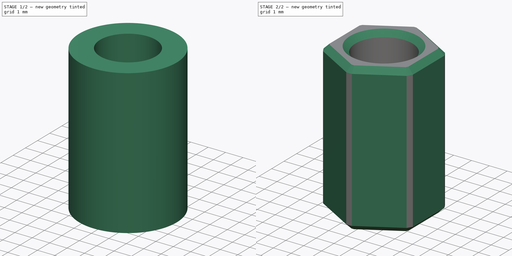
[diagram: build sequence overview — one tinted view per stage of 2, left to right]
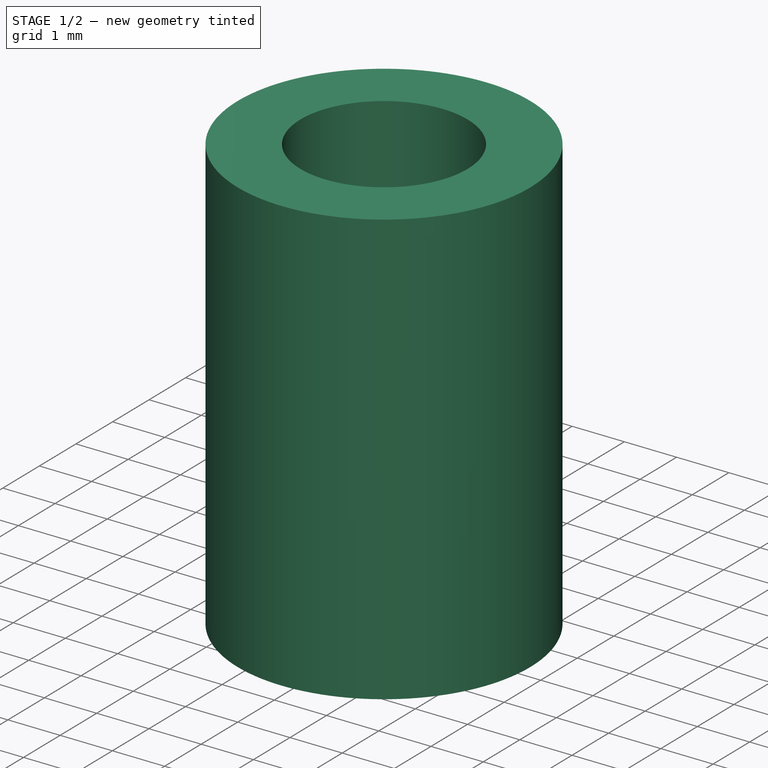
[diagram: stage 1 of 2 — iso view after this stage's code; geometry added in this stage tinted green]
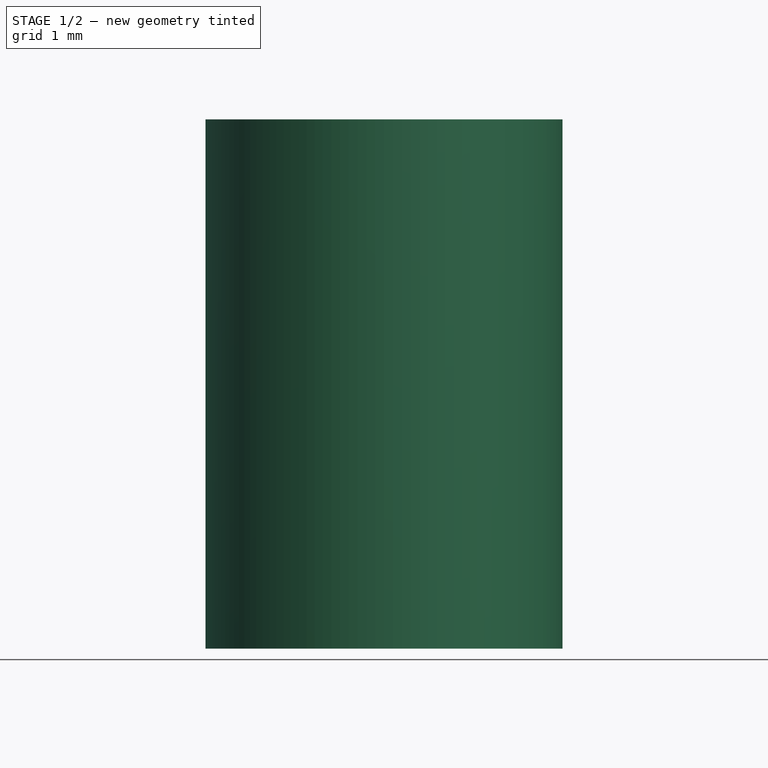
[diagram: stage 1 of 2 — front view after this stage's code; geometry added in this stage tinted green]
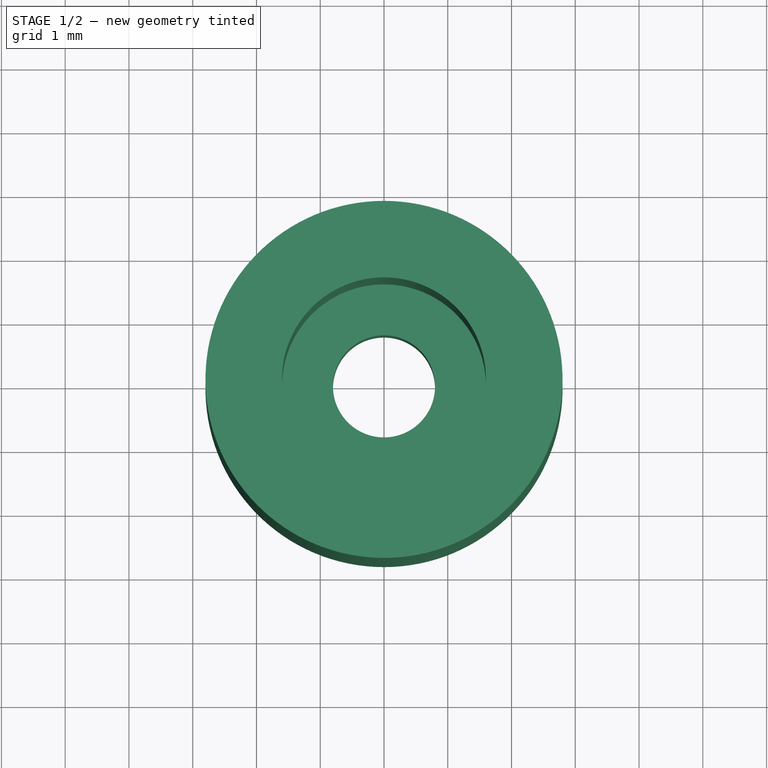
[diagram: stage 1 of 2 — top view after this stage's code; geometry added in this stage tinted green]
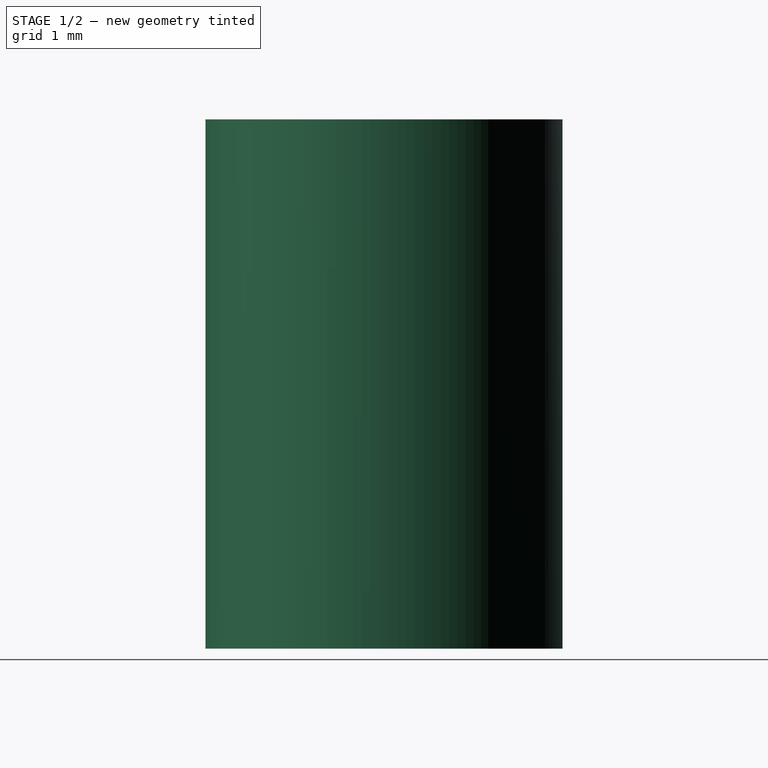
[diagram: stage 1 of 2 — right view after this stage's code; geometry added in this stage tinted green]
FCSTD DOCUMENT  (FreeCAD 0.21R33668 +26 (Git))
Label: PLASTIC-SPACER
License: All rights reserved
LicenseURL: http://en.wikipedia.org/wiki/All_rights_reserved
objects: TechDraw::DrawViewDimension×5, Sketcher::SketchObject×3, TechDraw::DrawViewPart×3, TechDraw::DrawHatch×3, PartDesign::Body×2, PartDesign::Revolution×1, TechDraw::DrawSVGTemplate×1, PartDesign::FeatureBase×1, PartDesign::Pocket×1, PartDesign::Chamfer×1, TechDraw::DrawComplexSection×1, TechDraw::DrawViewBalloon×1, TechDraw::DrawPage×1
note: 17 computed .brp shape members not serialized (recipe doc carries the construction recipe); baked Part::Feature solids carry a one-line shape summary decoded from their .brp

FEATURE [Sketcher::SketchObject] Sketch
  FullyConstrained = true
  MapMode = 5
  Placement = pos=(0,0,0) rot=(0.57735,0.57735,0.57735;2.0944rad)
  Support = -> [YZ_Plane]
  sketch-geometry (6):
    g0: LineSegment StartX=2.8 StartY=8.3 StartZ=0 EndX=2.8 EndY=0 EndZ=0
    g1: LineSegment StartX=2.8 StartY=0 StartZ=0 EndX=0.8 EndY=0 EndZ=0
    g2: LineSegment StartX=0.8 StartY=0 StartZ=0 EndX=0.8 EndY=2 EndZ=0
    g3: LineSegment StartX=0.8 StartY=2 StartZ=0 EndX=1.6 EndY=2 EndZ=0
    g4: LineSegment StartX=1.6 StartY=2 StartZ=0 EndX=1.6 EndY=8.3 EndZ=0
    g5: LineSegment StartX=1.6 StartY=8.3 StartZ=0 EndX=2.8 EndY=8.3 EndZ=0
  constraints (18):
    c: Vertical(g0)
    c: Coincident(g0,g1)
    c: Horizontal(g1)
    c: Coincident(g1,g2)
    c: Vertical(g2)
    c: Coincident(g2,g3)
    c: Horizontal(g3)
    c: Coincident(g3,g4)
    c: Vertical(g4)
    c: Coincident(g4,g5)
    c: Horizontal(g5)
    c: DistanceX(g-1,g1) = 0.8
    c: DistanceX(g1,g1) = 2
    c: DistanceX(g-1,g3) = 1.6
    c: Coincident(g0,g5)
    c: DistanceY(g-1,g4) = 8.3
    c: PointOnObject(g1,g-1)
    c: DistanceY(g2,g2) = 2
FEATURE [PartDesign::Revolution] Revolution
  Angle = 360
  Axis = (-2e-16,3e-16,1)
  Base = (0,0,0)
  Placement = pos=(0,0,0) rot=(0.57735,0.57735,0.57735;2.0944rad)
  Profile = -> Sketch
  ReferenceAxis = -> Sketch [V_Axis]
  Reversed = true
FEATURE [Sketcher::SketchObject] Sketch001
  FullyConstrained = true
  MapMode = 5
  Support = -> [XY_Plane001]
  sketch-geometry (8):
    g0: Circle CenterX=0 CenterY=0 CenterZ=0 NormalX=0 NormalY=0 NormalZ=1 AngleXU=0 Radius=5
    g1: LineSegment StartX=-2.5 StartY=1.44338 StartZ=0 EndX=-2.5 EndY=-1.44338 EndZ=0
    g2: LineSegment StartX=-2.5 StartY=-1.44338 StartZ=0 EndX=0 EndY=-2.88675 EndZ=0
    g3: LineSegment StartX=0 StartY=-2.88675 StartZ=0 EndX=2.5 EndY=-1.44338 EndZ=0
    g4: LineSegment StartX=2.5 StartY=-1.44338 StartZ=0 EndX=2.5 EndY=1.44338 EndZ=0
    g5: LineSegment StartX=2.5 StartY=1.44338 StartZ=0 EndX=0 EndY=2.88675 EndZ=0
    g6: LineSegment StartX=0 StartY=2.88675 StartZ=0 EndX=-2.5 EndY=1.44338 EndZ=0
    g7: Circle CenterX=0 CenterY=0 CenterZ=0 NormalX=0 NormalY=0 NormalZ=1 AngleXU=0 Radius=2.88675
  constraints (18):
    c: Coincident(g0,g-1)
    c: Coincident(g1,g2)
    c: Coincident(g2,g3)
    c: Coincident(g3,g4)
    c: Coincident(g4,g5)
    c: Coincident(g5,g6)
    c: Coincident(g6,g1)
    c: Equal(g1, g2-g6) x5
    c: PointOnObject(g1,g7)
    c: PointOnObject(g2,g7)
    c: PointOnObject(g3,g7)
    c: PointOnObject(g4,g7)
    c: PointOnObject(g5,g7)
    c: PointOnObject(g6,g7)
    c: Coincident(g7,g0)
    c: Vertical(g1)
    c: DistanceX(g1,g4) = 5
    c: Diameter(g0) = 10
FEATURE [TechDraw::DrawSVGTemplate] Template
  EditableTexts = COLOR=Black; CreationDate=2024/02/28; E.G.APPROVED=APPROVED; FC-Scale=10:1; FC-Title=PLASTIC - SPACER; IntechStudioLtd.=Intech Studio Ltd.; MATERIAL=POM; REV=02; STANDARD=+/- 0,1
  Height = 297
  Orientation = 1
  Template = <userpath>/Desktop/A3_LandscapeTD_MODIFIED.svg
  Width = 420
FEATURE [Sketcher::SketchObject] Sketch002
  FullyConstrained = true
  MapMode = 5
  Placement = pos=(0,0,0) rot=(1,0,0;1.5708rad)
  Support = -> [XZ_Plane]
  sketch-geometry (1):
    g0: LineSegment StartX=0 StartY=9 StartZ=0 EndX=0 EndY=-0.5 EndZ=0
  constraints (4):
    c: PointOnObject(g0,g-2)
    c: PointOnObject(g0,g-2)
    c: DistanceY(g0,g0) = 9.5
    c: DistanceY(g0,g-1) = 0.5
FEATURE [PartDesign::Body] Body  label="PLASTIC-SPACER"
  Group = -> [Sketch,Revolution,Sketch002]
  Origin = -> Origin
  Tip = -> Revolution
FEATURE [PartDesign::FeatureBase] Clone
  BaseFeature = -> Body
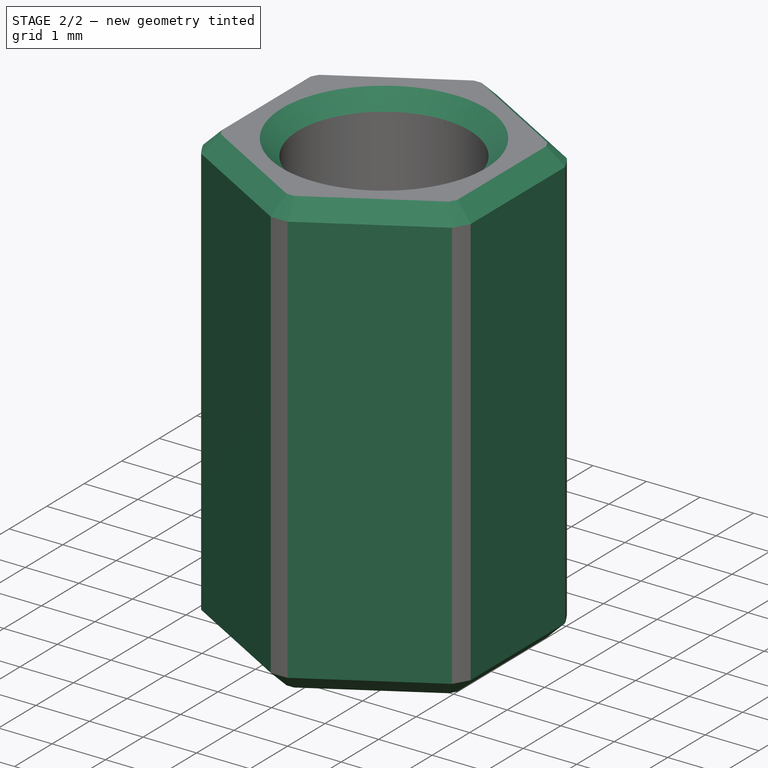
[diagram: stage 2 of 2 — iso view after this stage's code; geometry added in this stage tinted green]
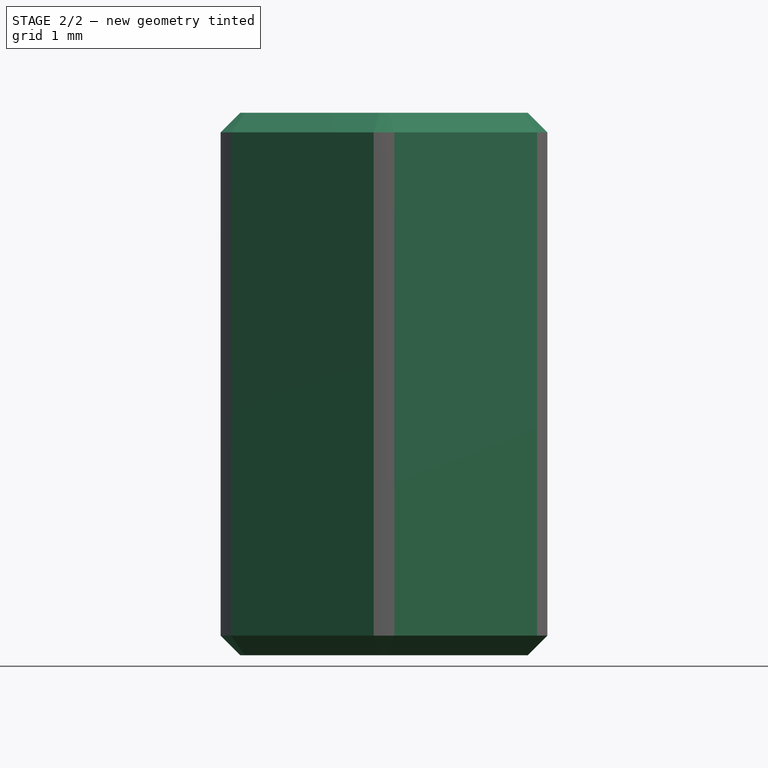
[diagram: stage 2 of 2 — front view after this stage's code; geometry added in this stage tinted green]
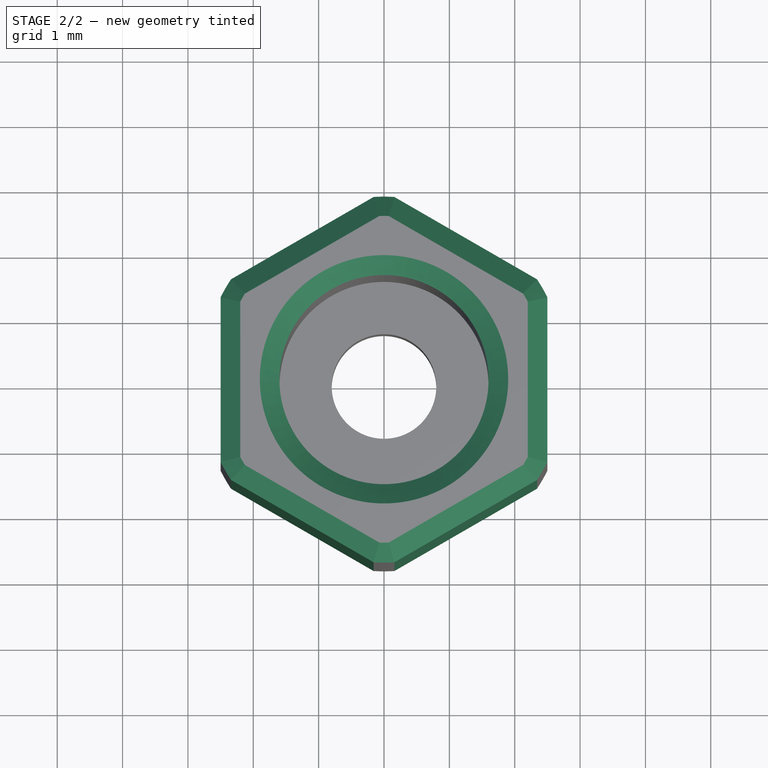
[diagram: stage 2 of 2 — top view after this stage's code; geometry added in this stage tinted green]
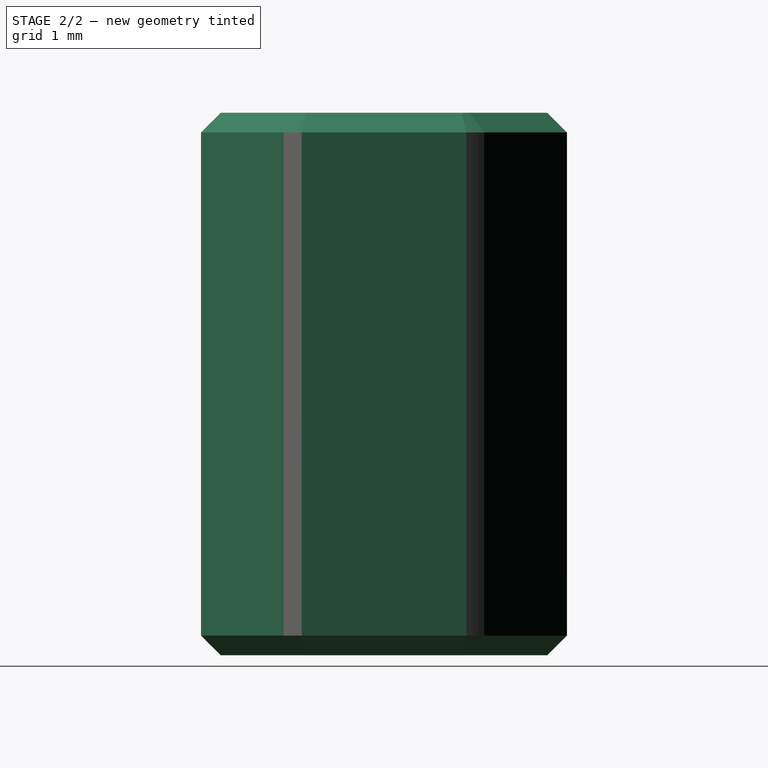
[diagram: stage 2 of 2 — right view after this stage's code; geometry added in this stage tinted green]
FEATURE [PartDesign::Pocket] Pocket
  BaseFeature = -> Clone
  Direction = (0,0,-1)
  Length = 5
  Length2 = 5
  Midplane = true
  Profile = -> Sketch001
  ReferenceAxis = -> Sketch001 [N_Axis]
  Type = 1
FEATURE [PartDesign::Chamfer] Chamfer
  Angle = 45
  Base = -> Pocket [Face5,Face3]
  BaseFeature = -> Pocket
  ChamferType = 0
  FlipDirection = false
  Size = 0.3
  Size2 = 1
  SupportTransform = false
  UseAllEdges = false
FEATURE [PartDesign::Body] Body001  label="PLASTIC-SPACER_Printed"
  Group = -> [Clone,Sketch001,Pocket,Chamfer]
  Origin = -> Origin001
  Tip = -> Chamfer
FEATURE [TechDraw::DrawViewPart] View
  CoarseView = false
  Direction = (0,-1,1e-06)
  Focus = 100
  HardHidden = false
  IsoCount = 0
  IsoHidden = false
  IsoVisible = true
  LockPosition = false
  Perspective = false
  Rotation = 0
  Scale = 10
  ScaleType = 2
  ScrubCount = 0
  SeamHidden = false
  SeamVisible = true
  SmoothHidden = false
  SmoothVisible = true
  Source = -> [Body]
  X = 69.7766
  XDirection = (1,0,0)
  Y = 193.025
FEATURE [TechDraw::DrawComplexSection] ComplexSection  label="Section A - A"
  BaseView = -> View
  Caption = Section A-A
  CoarseView = false
  CutSurfaceDisplay = 2
  CuttingToolWireObject = -> Sketch002
  Direction = (-1,0,-1e-16)
  FileGeomPattern = C:/Program Files/FreeCAD 0.21/data/Mod/TechDraw/PAT/FCPAT.pat
  FileHatchPattern = C:/Program Files/FreeCAD 0.21/data/Mod/TechDraw/Patterns/simple.svg
  Focus = 100
  FuseBeforeCut = false
  HardHidden = false
  HatchOffset = (0,0,0)
  HatchRotation = 0
  HatchScale = 1
  IsoCount = 0
  IsoHidden = false
  IsoVisible = true
  LockPosition = false
  NameGeomPattern = Gyémánt bevonatú
  Perspective = false
  ProjectionStrategy = 0
  Rotation = -90
  Scale = 10
  ScaleType = 2
  ScrubCount = 0
  SeamHidden = false
  SeamVisible = true
  SectionDirection = 4
  SectionNormal = (-1,0,-1e-16)
  SectionOrigin = (0,0,0)
  SectionSymbol = A
  SmoothHidden = false
  SmoothVisible = true
  Source = -> [Body]
  TrimAfterCut = false
  X = 173.766
  XDirection = (1e-16,-1e-06,-1)
  Y = 191.777
FEATURE [TechDraw::DrawViewPart] View001
  CoarseView = false
  Direction = (0,1e-06,1)
  Focus = 100
  HardHidden = false
  IsoCount = 0
  IsoHidden = false
  IsoVisible = true
  LockPosition = false
  Perspective = false
  Rotation = 0
  Scale = 10
  ScaleType = 2
  ScrubCount = 0
  SeamHidden = false
  SeamVisible = true
  SmoothHidden = false
  SmoothVisible = true
  Source = -> [Body]
  X = 71.9109
  XDirection = (1,0,0)
  Y = 72.8822
FEATURE [TechDraw::DrawViewDimension] Dimension
  AngleOverride = false
  Arbitrary = false
  ArbitraryTolerances = false
  EqualTolerance = true
  ExtensionAngle = 0
  FormatSpec = ⌀%.2w
  FormatSpecOverTolerance = %+.2w
  FormatSpecUnderTolerance = %+.2w
  Inverted = false
  LineAngle = 0
  LockPosition = false
  MeasureType = 1
  OverTolerance = 0
  References2D = -> [View001]
  Rotation = 0
  ScaleType = 0
  TheoreticalExact = false
  Type = 5
  UnderTolerance = 0
  X = 52.1911
  Y = 23.7678
FEATURE [TechDraw::DrawViewDimension] Dimension001
  AngleOverride = false
  Arbitrary = false
  ArbitraryTolerances = false
  EqualTolerance = true
  ExtensionAngle = 0
  FormatSpec = %.2w
  FormatSpecOverTolerance = %+.2w
  FormatSpecUnderTolerance = %+.2w
  Inverted = false
  LineAngle = 0
  LockPosition = false
  MeasureType = 1
  OverTolerance = 0
  References2D = -> [View]
  Rotation = 0
  ScaleType = 0
  TheoreticalExact = false
  Type = 2
  UnderTolerance = 0
  X = -40.7619
  Y = -0.392856
FEATURE [TechDraw::DrawViewDimension] Dimension002
  AngleOverride = false
  Arbitrary = false
  ArbitraryTolerances = false
  EqualTolerance = true
  ExtensionAngle = 0
  FormatSpec = %.2w
  FormatSpecOverTolerance = %+.2w
  FormatSpecUnderTolerance = %+.2w
  Inverted = false
  LineAngle = 0
  LockPosition = false
  MeasureType = 1
  OverTolerance = 0
  References2D = -> [ComplexSection]
  Rotation = 0
  ScaleType = 0
  TheoreticalExact = false
  Type = 2
  UnderTolerance = 0
  X = 42.8958
  Y = -30.6846
FEATURE [TechDraw::DrawViewDimension] Dimension004
  AngleOverride = false
  Arbitrary = false
  ArbitraryTolerances = true
  EqualTolerance = false
  ExtensionAngle = 0
  FormatSpec = ⌀%.2w
  FormatSpecOverTolerance = +0,1
  FormatSpecUnderTolerance = 0
  Inverted = false
  LineAngle = 0
  LockPosition = false
  MeasureType = 1
  OverTolerance = 0.0001
  References2D = -> [ComplexSection]
  Rotation = 0
  ScaleType = 0
  TheoreticalExact = false
  Type = 1
  UnderTolerance = 0
  X = 0.226484
  Y = 70.6576
FEATURE [TechDraw::DrawViewDimension] Dimension005
  AngleOverride = false
  Arbitrary = false
  ArbitraryTolerances = true
  EqualTolerance = false
  ExtensionAngle = 0
  FormatSpec = ⌀%.2w
  FormatSpecOverTolerance = +0,1
  FormatSpecUnderTolerance = 0
  Inverted = false
  LineAngle = 0
  LockPosition = false
  MeasureType = 1
  OverTolerance = 0.05
  References2D = -> [ComplexSection]
  Rotation = 0
  ScaleType = 0
  TheoreticalExact = false
  Type = 1
  UnderTolerance = 0
  X = -0.679346
  Y = 56.5053
FEATURE [TechDraw::DrawViewPart] View002
  CoarseView = false
  Direction = (0.57735,-0.57735,0.57735)
  Focus = 100
  HardHidden = false
  IsoCount = 0
  IsoHidden = false
  IsoVisible = true
  LockPosition = false
  Perspective = false
  Rotation = 0
  Scale = 10
  ScaleType = 2
  ScrubCount = 0
  SeamHidden = false
  SeamVisible = true
  SmoothHidden = false
  SmoothVisible = true
  Source = -> [Body]
  X = 321.155
  XDirection = (0.707107,0.707107,0)
  Y = 194.905
FEATURE [TechDraw::DrawHatch] Hatch001  label="Hatch001F2"
  HatchPattern = C:/Program Files/FreeCAD 0.21/data/Mod/TechDraw/Patterns/solid.svg
  Source = -> View002 [Face2]
FEATURE [TechDraw::DrawHatch] Hatch  label="HatchF1"
  HatchPattern = C:/Program Files/FreeCAD 0.21/data/Mod/TechDraw/Patterns/solid.svg
  Source = -> View002 [Face1]
FEATURE [TechDraw::DrawHatch] Hatch002  label="Hatch002F4"
  HatchPattern = C:/Program Files/FreeCAD 0.21/data/Mod/TechDraw/Patterns/solid.svg
  Source = -> View002 [Face4,Face5]
FEATURE [TechDraw::DrawViewBalloon] Balloon
  BubbleShape = 2
  EndType = 6
  EndTypeScale = 1
  KinkLength = 0
  LockPosition = false
  OriginX = -44.7444
  OriginY = 1.77663
  Rotation = 0
  ScaleType = 0
  ShapeScale = 1
  SourceView = -> Dimension001
  Text = 2
  TextWrapLen = -1
  X = -47.5302
  Y = -8.71131
FEATURE [TechDraw::DrawPage] Page  label=" PLASTIC-SPACER_Drawing"
  KeepUpdated = true
  NextBalloonIndex = 2
  ProjectionType = 0
  Template = -> Template
  Views = -> [View,ComplexSection,View001,Dimension,Dimension001,Dimension002,Dimension004,Dimension005,View002,Balloon]
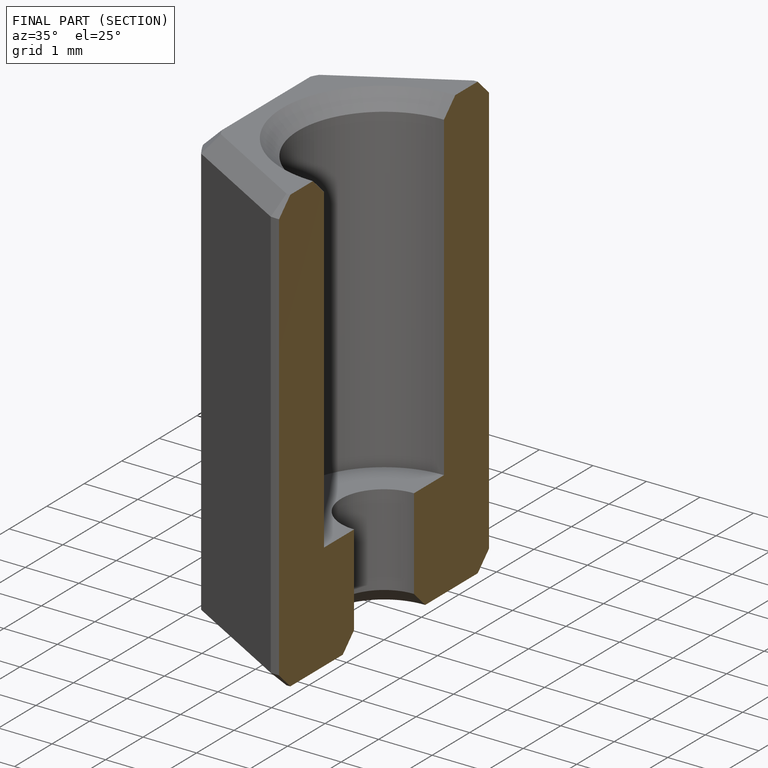
[diagram: finished part — half-section view (interior)]
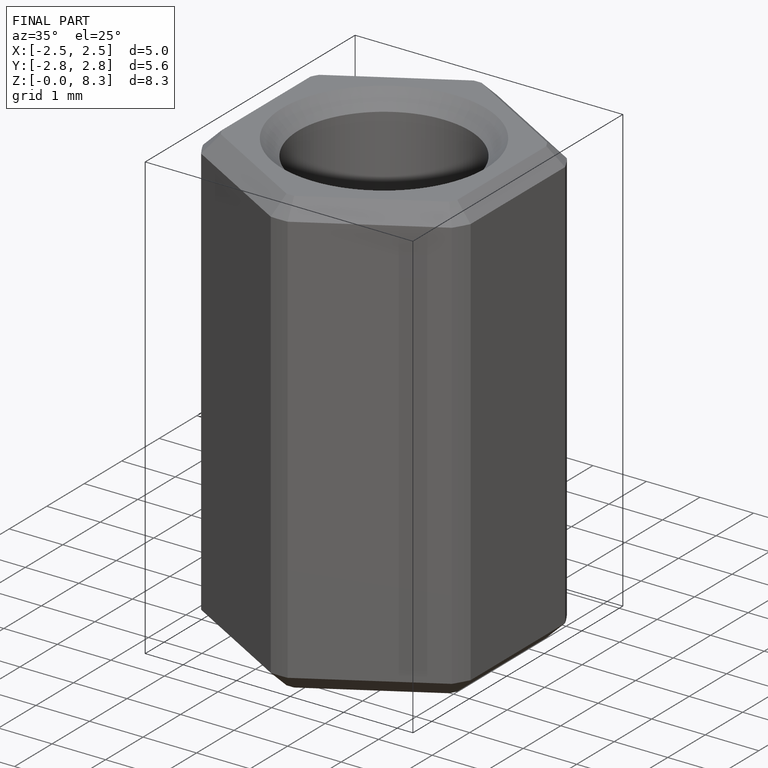
[diagram: finished part — iso view with bounding-box wireframe]
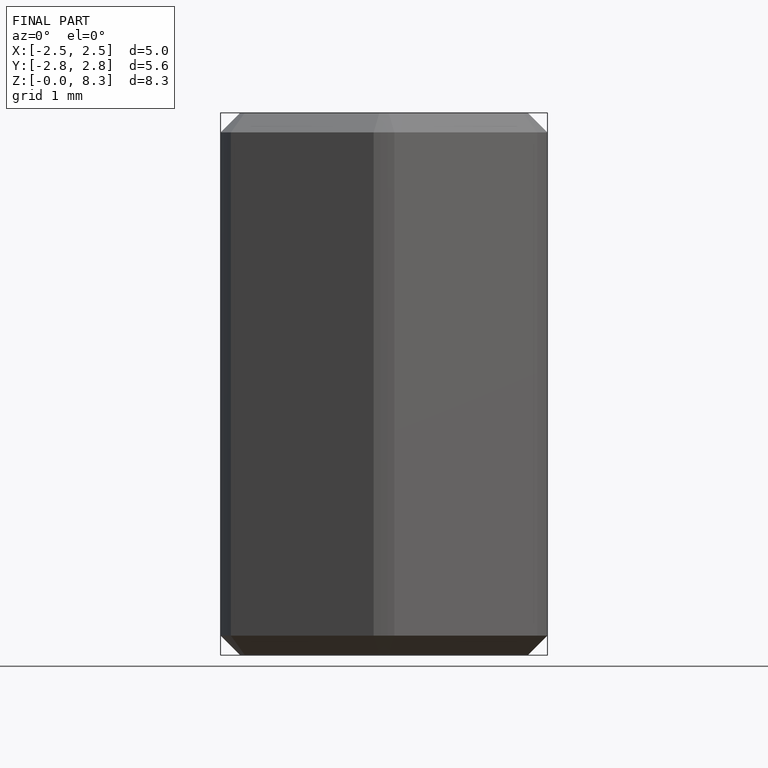
[diagram: finished part — front view with bounding-box wireframe]
